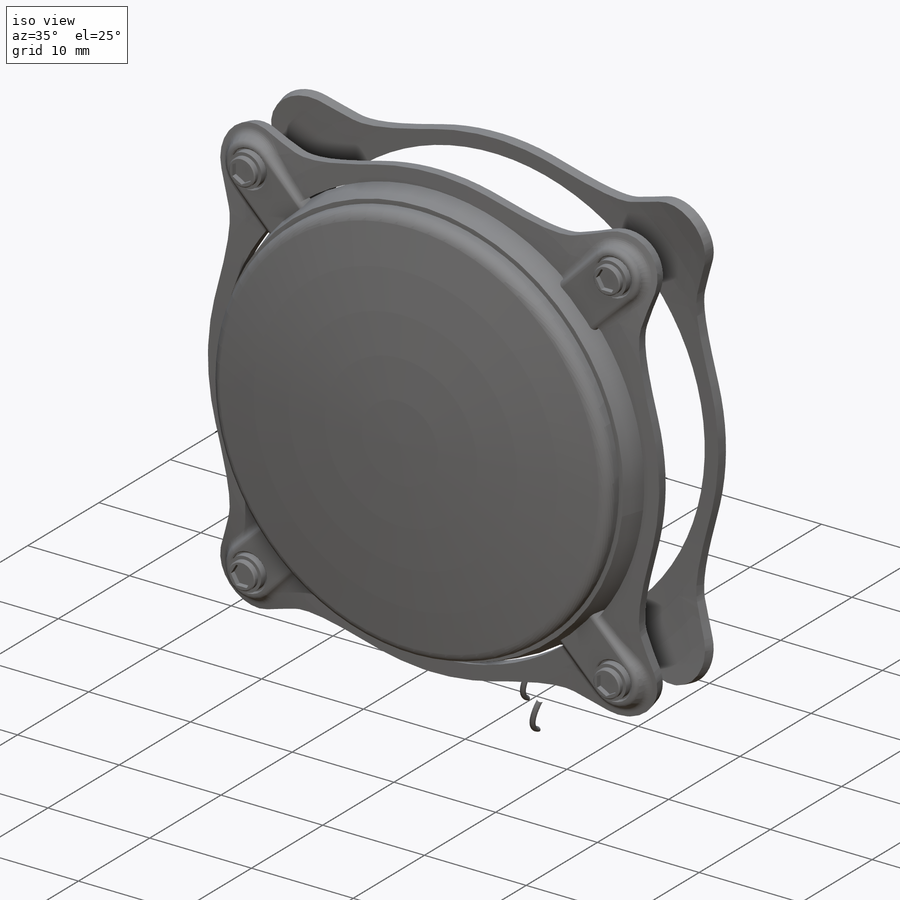
[diagram: iso view]
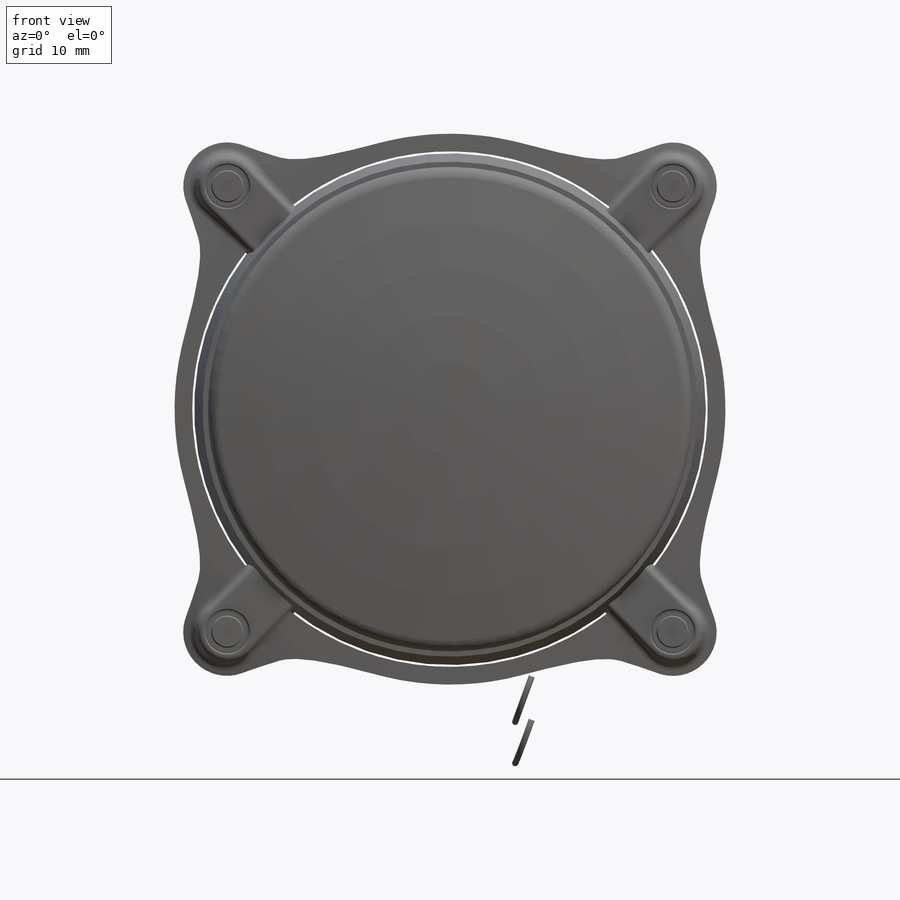
[diagram: front view]
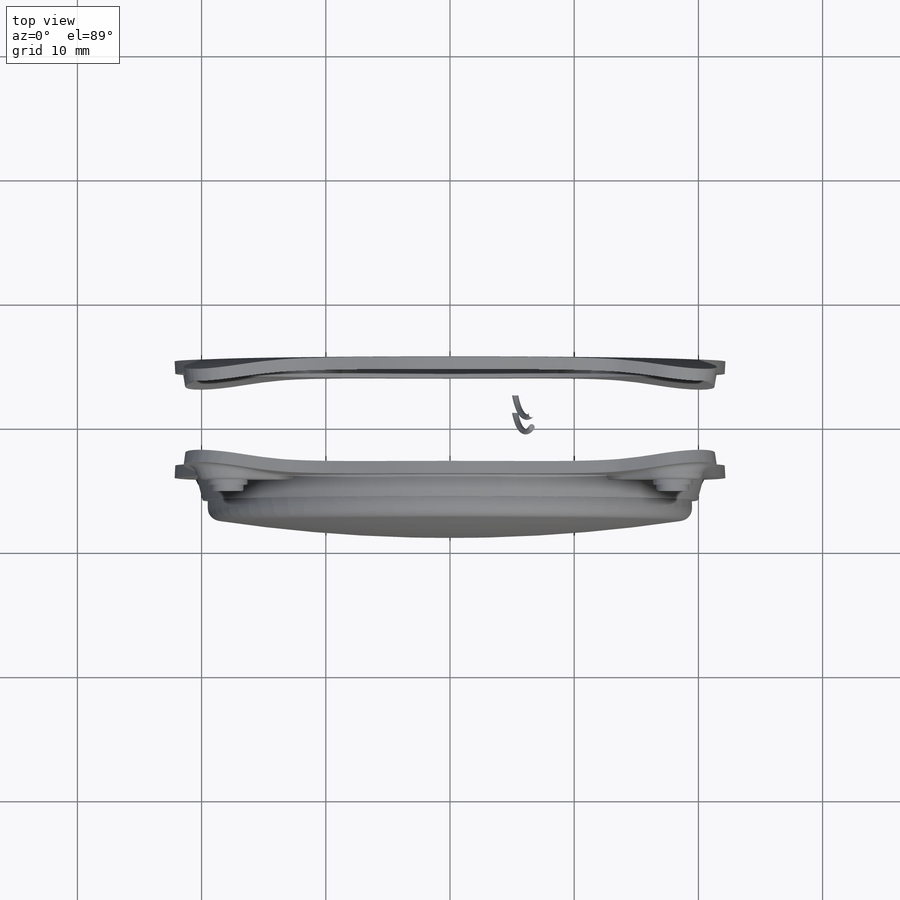
[diagram: top view]
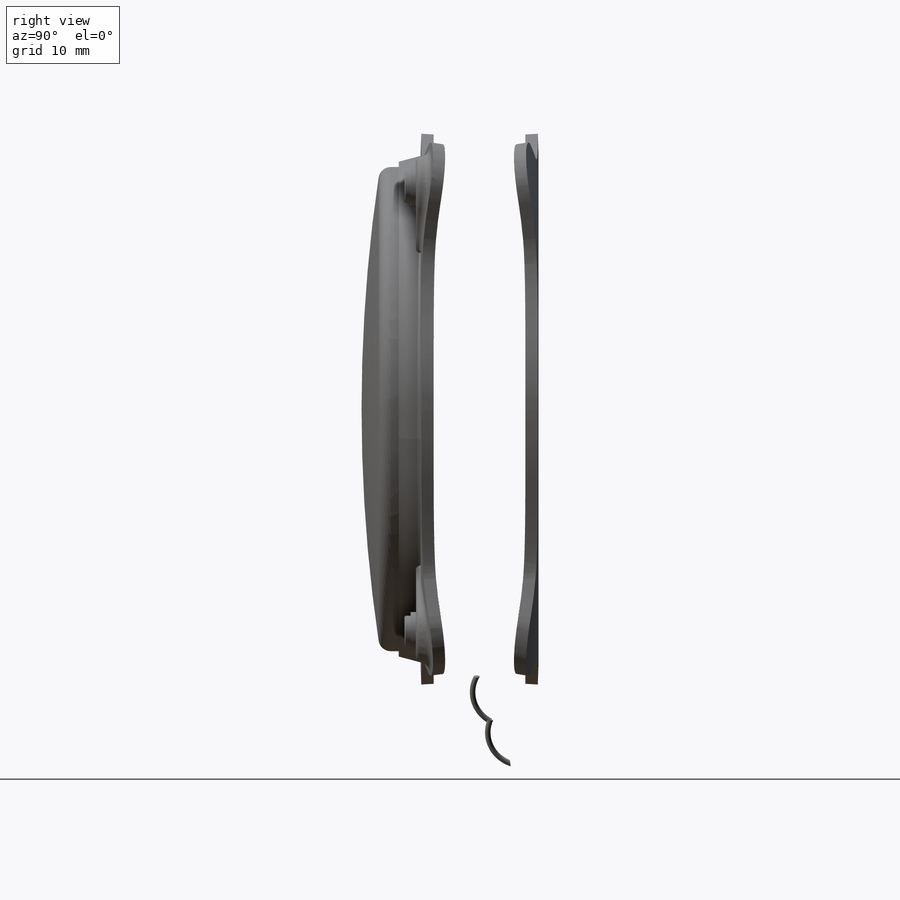
[diagram: right view]
SOLIDWORKS PART (.sldprt)
format: sldprt  version: not decoded by parser v0  size: 5,682,688 bytes
history: native  units: mm
features: sketch x45, cut_revolve x20, cut_extrude x17, extrude x13, fillet x11, plane x5, pattern_circular x5, chamfer x5, mirror x2, sweep x2, material x1, surface_op x1, revolve x1, move_body x1, delete_body x1, curve x1 + 1 further entry (+11 scaffold rows collapsed)
feature tree (143):
  scaffold x11  (default folders/planes/origin — collapsed)
  material  "Material <not specified>"
  sketch  "Model"
  sketch  "Sketch2"  dims[D1=32.0mm]
  extrude  "Boss-Extrude1"  Depth=1.75mm
  sketch  "Sketch3"  dims[D1=38.0mm]
  cut_extrude  "Cut-Extrude1"  [1 undecoded]
  sketch  "Sketch4"  dims[c1.D2=11.5mm c1.D1=10.25mm c1.D3=~10.101211mm c2.D3=90.0deg]
  cut_extrude  "Cut-Extrude2"  [1 undecoded]
  sketch  "Sketch5"  dims[D2=300.0mm D1=4.0mm D3=50.0mm]
  surface_op  "Surface-Extrude1"
  sketch  "Sketch10"  dims[c1.D4=40.0mm c1.D1=4.5mm c1.D2=40.0mm c1.D3=35.0mm c2.D1=360.0deg]
  sketch  "Sketch6"  dims[c1.D1=44.5mm c1.D2=6.5mm c2.D1=0.0mm c2.D2=0.0mm c2.D3=0.0mm c2.D4=0.0mm c2.D5=0.0mm c2.D6=0.0mm c2.D7=0.0mm c2.D8=0.0mm c2.D9=0.0mm c2.D10=0.0mm c3.D1=1.0mm]
  sketch  "Sketch7"  dims[D1=0.75mm]
  cut_extrude  "Cut-Extrude4"  [1 undecoded]
  plane  "Plane1"  Offset=0.25mm
  mirror  "Mirror1"
  sketch  "Sketch11"  dims[D1=0.0mm]
  sketch  "Sketch12"  dims[D1=~1.596127mm D2=10.0mm]
  sketch  "Sketch10<2>"  dims[D1=360.0deg]
  mirror  "Mirror2"
  "Thicken2"
  cut_extrude  "Cut-Extrude5"  [1 undecoded]
  sketch  "Sketch7<2>"  dims[D1=1.0mm]
  sketch  "Sketch13"  dims[D1=1.6mm]
  extrude  "Boss-Extrude5"  Depth=2.5mm
  sketch  "Sketch15"  dims[D1=50.0mm D2=90.0mm]
  sketch  "Sketch16"
  extrude  "Boss-Extrude7"  Depth=1mm
  pattern_circular  "CirPattern1"  Count=4 Angle=360deg
  fillet  "Fillet1"  Radius=0.5mm
  fillet  "Fillet2"  Radius=0.7mm
  sketch  "Sketch17"  dims[D1=0.5mm]
  cut_extrude  "Cut-Extrude6"  Depth=1mm
  sketch  "Sketch18"  dims[c1.D4=~104.326905mm c1.D1=3.0mm c1.D2=2.5mm c1.D3=0.8mm c2.D4=0.7mm c2.D3=1.5mm]
  revolve  "Revolve1"  Angle=360deg
  fillet  "Fillet3"  Radius=1mm
  sketch  "Sketch19"  dims[D1=3.5mm]
  cut_extrude  "Cut-Extrude7"  Depth=4.6mm
  sketch  "Sketch21"  dims[D1=3.2mm]
  extrude  "Boss-Extrude8"  Depth=0.7mm
  sketch  "Sketch22"  dims[D1=2.6mm D2=1.8mm]
  extrude  "Boss-Extrude9"  Depth=0.5mm
  chamfer  "Chamfer2"  Distance=0.1mm Angle=45deg
  pattern_circular  "CirPattern2"  Count=4 Angle=360deg
  pattern_circular  "CirPattern3"  Count=4 Angle=90deg
  chamfer  "Chamfer3"  Distance=0.1mm Angle=45deg
  sketch  "Sketch24"  dims[D1=12.5mm]
  cut_extrude  "Cut-Extrude8"  Depth=0.05mm
  sketch  "Sketch27"  dims[D1=~1.003607mm]
  extrude  "Boss-Extrude12"  Depth=7mm
  sketch  "Sketch29"
  plane  "Plane2"
  sketch  "Sketch30"  dims[D3=110.0mm D1=26.0mm D2=4.0mm D4=3.0mm]
  sweep  "Sweep1"
  sketch  "Sketch35"  dims[D1=15.0mm]
  cut_extrude  "Cut-Extrude12"  [1 undecoded]
  fillet  "Fillet6"  Radius=20mm
  fillet  "Fillet4"  Radius=1mm
  plane  "Plane3"  Offset=6mm
  sketch  "Sketch32"
  plane  "Plane4"
  sketch  "Sketch33"  dims[D1=0.5mm]
  sweep  "Sweep2"
  move_body  "Body-Move/Copy1"
  sketch  "Sketch36"
  cut_extrude  "Cut-Extrude13"  Depth=20mm
  delete_body  "Body-Delete1"
  curve  "Split Line3"
  sketch  "Sketch38"
  plane  "Plane5"
  sketch  "Sketch37"  dims[D1=1.0mm D2=3.0mm]
  cut_extrude  "Cut-Extrude14"  Depth=15mm
  fillet  "Fillet7"  Radius=0.3mm
  sketch  "Sketch34"  dims[c1.D1=26.1mm c1.D2=0.5mm c1.D3=4.1mm c1.D4=1.0mm c2.D3=~13.059575mm c2.D2=0.5mm c3.D3=0.4mm]
  cut_extrude  "Cut-Extrude11"  [1 undecoded]
  fillet  "Fillet5"  Radius=1mm
  sketch  "Sketch39"  dims[D1=6.5mm]
  cut_extrude  "Cut-Extrude15"  [1 undecoded]
  sketch  "Sketch40"  dims[D1=6.3mm]
  extrude  "Boss-Extrude13"  Depth=5mm
  sketch  "Sketch41"  dims[D1=1.2mm]
  cut_extrude  "Cut-Extrude16"  [1 undecoded]
  sketch  "Sketch42"  dims[D2=3.5mm D1=4.75mm]
  extrude  "Boss-Extrude14"  Depth=0.7mm
  chamfer  "Chamfer4"  Distance=0.3mm Angle=45deg
  sketch  "Sketch43"  dims[D1=0.2mm]
  extrude  "Boss-Extrude15"  Depth=1.5mm
  fillet  "Fillet8"  Radius=0.2mm
  fillet  "Fillet9"  Radius=0.2mm
  sketch  "Sketch44"  dims[D1=5.9mm D2=0.6mm]
  cut_revolve  "Cut-Revolve1"  Angle=360deg
  cut_revolve  "Body-Move/Copy2"  [1 undecoded]
  sketch  "Sketch45"  dims[D1=3.0mm]
  cut_extrude  "Cut-Extrude18"  [1 undecoded]
  pattern_circular  "CirPattern4"  Count=4 Angle=360deg
  sketch  "Sketch46"  dims[c1.D1=16.0mm c1.D2=16.0mm c1.D3=3.0mm c2.D1=1.0mm c2.D2=1.0mm]
  extrude  "Boss-Extrude16"  Depth=0.2mm
  sketch  "Sketch47"  dims[D1=2.6mm]
  extrude  "Boss-Extrude17"  Depth=1mm
  sketch  "Sketch48"  dims[D1=~3.855413mm]
  cut_extrude  "Cut-Extrude19"  Depth=0.5mm
  chamfer  "Chamfer5"  Distance=0.3mm Angle=45deg
  pattern_circular  "CirPattern5"  Count=4 Angle=360deg
  sketch  "Sketch49"  dims[D3=6.0mm D4=4.5mm D1=11.0mm D2=2.0mm]
  extrude  "Boss-Extrude18"  Depth=27mm
  fillet  "Fillet10"  Radius=2mm
  chamfer  "Chamfer6"  Distance=0.7mm Angle=20deg
  sketch  "Sketch50"
  cut_extrude  "Cut-Extrude21"  Depth=0.3mm
  sketch  "Sketch51"  dims[D2=32.0mm D3=36.0mm D1=0.0mm]
  extrude  "Boss-Extrude19"  Depth=4mm
  cut_extrude  "Cut-Extrude22"  [1 undecoded]
  sketch  "Sketch51<3>"
  fillet  "Fillet11"  Radius=0.2mm
  cut_revolve  "Body-Move/Copy3"  [1 undecoded]
  cut_revolve  "Body-Move/Copy4"  [1 undecoded]
  cut_revolve  "Body-Move/Copy5"  [1 undecoded]
  cut_revolve  "Body-Move/Copy6"  [1 undecoded]
  cut_revolve  "Body-Move/Copy7"  [1 undecoded]
  cut_revolve  "Body-Move/Copy8"  [1 undecoded]
  cut_revolve  "Body-Move/Copy9"  [1 undecoded]
  cut_revolve  "Body-Move/Copy10"  [1 undecoded]
  cut_revolve  "Body-Move/Copy11"  [1 undecoded]
  cut_revolve  "Body-Move/Copy12"  [1 undecoded]
  cut_revolve  "Body-Move/Copy13"  [1 undecoded]
  cut_revolve  "Body-Move/Copy14"  [1 undecoded]
  cut_revolve  "Body-Move/Copy15"  [1 undecoded]
  cut_revolve  "Body-Move/Copy16"  [1 undecoded]
  cut_revolve  "Body-Move/Copy17"  [1 undecoded]
  cut_revolve  "Body-Move/Copy18"  [1 undecoded]
  cut_revolve  "Body-Move/Copy19"  [1 undecoded]
  cut_revolve  "Body-Move/Copy20"  [1 undecoded]
decode coverage: 80 of 125 modeling features carry decoded parameters; 1 rows unclassified (native names shown)
note: ~ marks probable driven/reference dimensions
note: 29 parameter values undecoded
summary: no parameter record found for 29 features
note: suppression state not decoded; provenance and decode notes live in map.json
